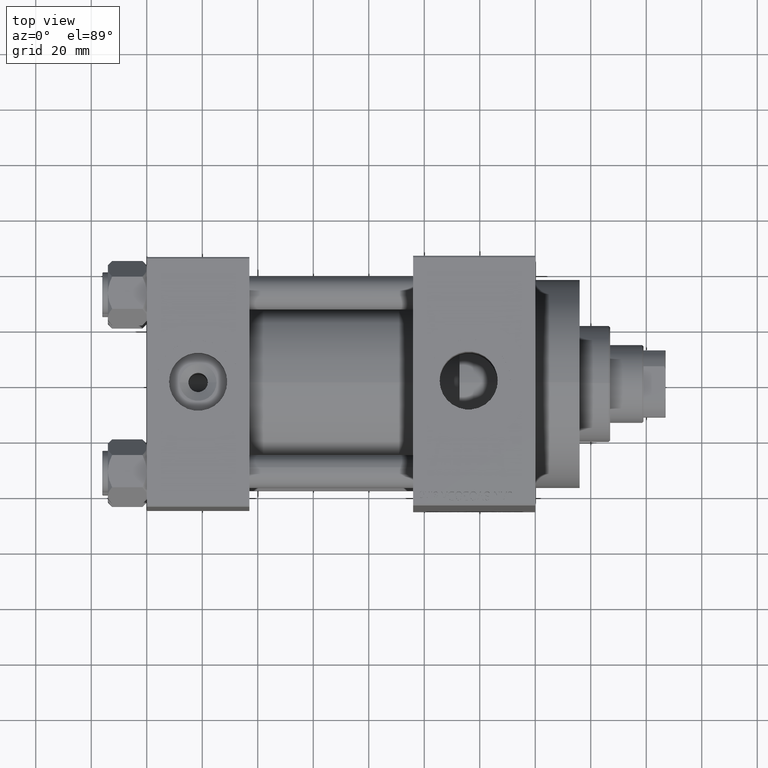
[diagram: clean part render]
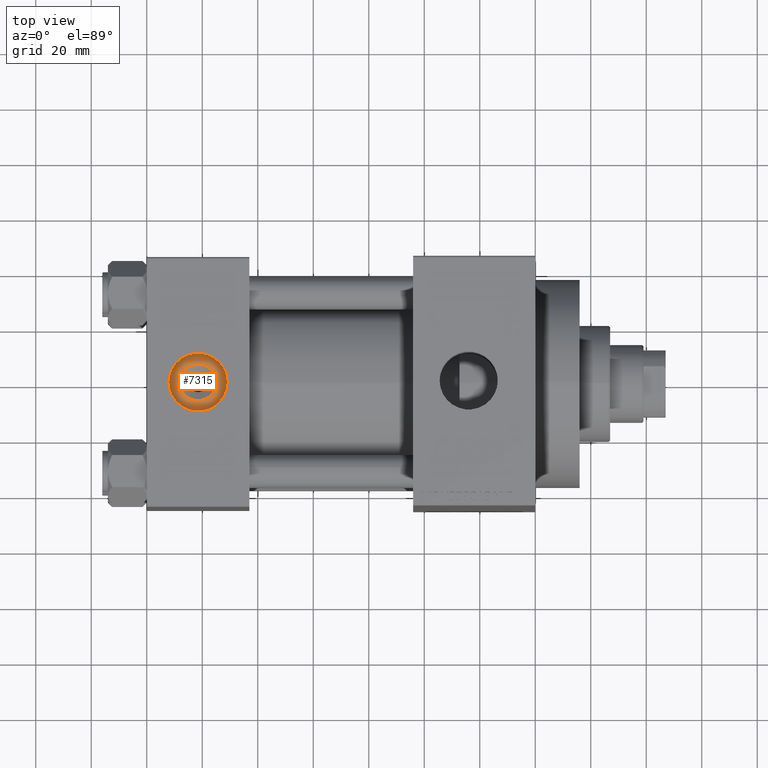
[diagram: same view with one face highlighted and labeled with its STEP entity id]
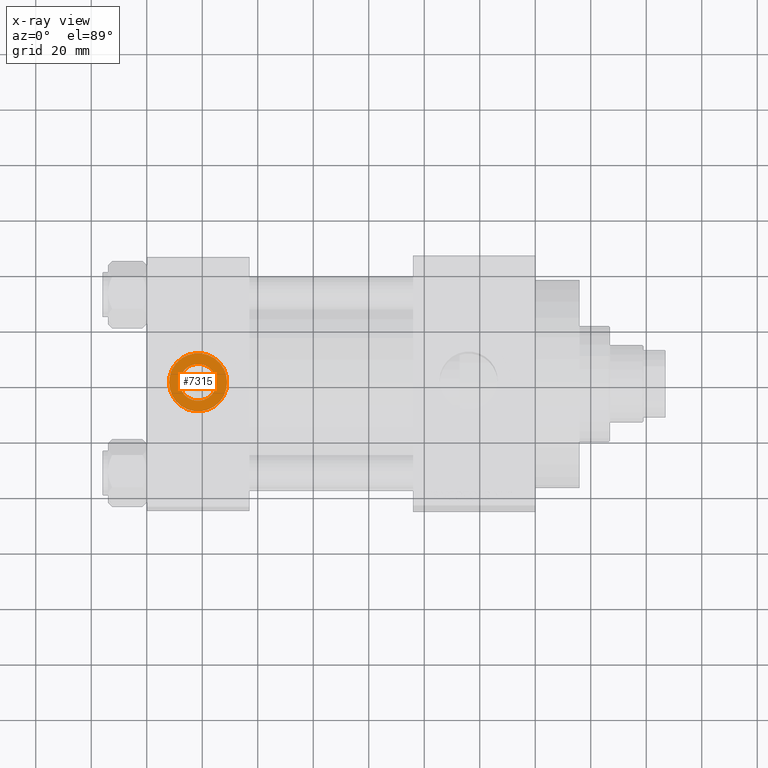
[diagram: x-ray of the same camera — body ghosted, the highlighted face saturated]
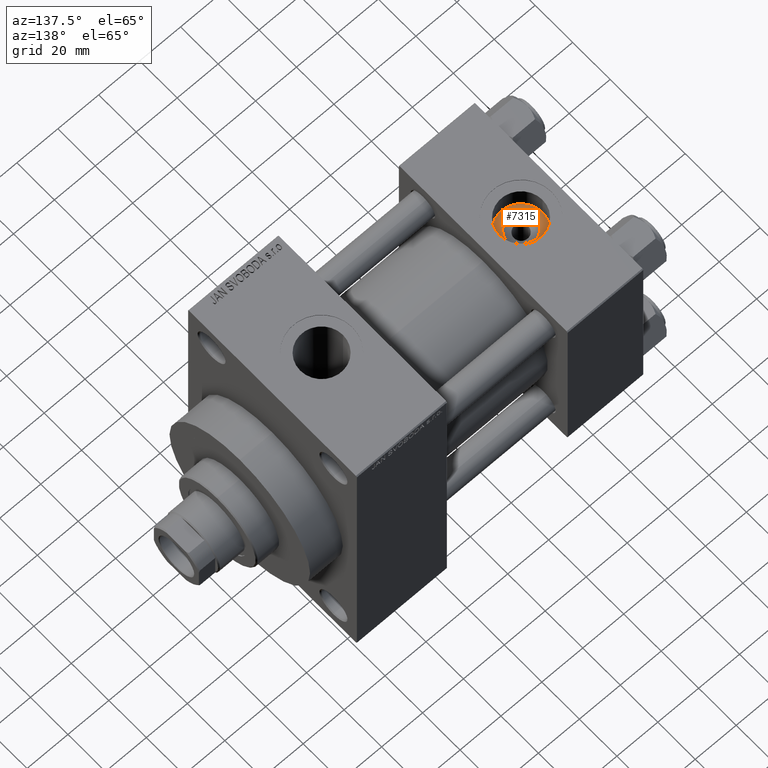
[diagram: same view with one face highlighted and labeled with its STEP entity id]
A machine part, top view. The second image highlights one B-rep face of the part: STEP entity #7315.
The next image is the same camera in x-ray: the body ghosted, the highlighted face saturated — about 0% of this face is hidden behind the body in this view.
A second angle (auxiliary view) of the same face is appended — the face is thin or edge-on in the first view.
In plain terms, the highlighted planar face has unit normal (0, 0, 1).
Its self-contained STEP definition (entity closure, byte-faithful):
#455 = CARTESIAN_POINT ( 'NONE',  ( 18.50000000000000000, -8.673617379884038628E-15, 34.20000000000000995 ) ) ;
#786 = VERTEX_POINT ( 'NONE', #40331 ) ;
#3148 = ORIENTED_EDGE ( 'NONE', *, *, #19815, .T. ) ;
#3490 = EDGE_LOOP ( 'NONE', ( #46818, #32607 ) ) ;
#3923 = AXIS2_PLACEMENT_3D ( 'NONE', #455, #15231, #21070 ) ;
#7315 = ADVANCED_FACE ( 'NONE', ( #12664, #22695 ), #15290, .T. ) ;
#7320 = DIRECTION ( 'NONE',  ( 1.000000000000000000, 0.000000000000000000, 0.000000000000000000 ) ) ;
#8857 = CARTESIAN_POINT ( 'NONE',  ( 18.50000000000000000, -8.673617379884038628E-15, 34.20000000000000995 ) ) ;
#10770 = DIRECTION ( 'NONE',  ( -0.000000000000000000, -0.000000000000000000, -1.000000000000000000 ) ) ;
#11957 = AXIS2_PLACEMENT_3D ( 'NONE', #20211, #37373, #30935 ) ;
#12441 = DIRECTION ( 'NONE',  ( 1.000000000000000000, 0.000000000000000000, -0.000000000000000000 ) ) ;
#12664 = FACE_BOUND ( 'NONE', #3490, .T. ) ;
#12910 = AXIS2_PLACEMENT_3D ( 'NONE', #18535, #36632, #7320 ) ;
#12979 = CARTESIAN_POINT ( 'NONE',  ( 28.98000000000000043, -8.673617379884038628E-15, 34.20000000000000995 ) ) ;
#14304 = EDGE_LOOP ( 'NONE', ( #24260, #3148 ) ) ;
#14815 = DIRECTION ( 'NONE',  ( 1.000000000000000000, 0.000000000000000000, 0.000000000000000000 ) ) ;
#15231 = DIRECTION ( 'NONE',  ( -0.000000000000000000, -0.000000000000000000, -1.000000000000000000 ) ) ;
#15290 = PLANE ( 'NONE',  #34452 ) ;
#18405 = CIRCLE ( 'NONE', #3923, 6.639999999999979252 ) ;
#18477 = VERTEX_POINT ( 'NONE', #25894 ) ;
#18535 = CARTESIAN_POINT ( 'NONE',  ( 18.50000000000000000, -8.673617379884038628E-15, 34.20000000000000995 ) ) ;
#18626 = CARTESIAN_POINT ( 'NONE',  ( 25.13999999999997925, -8.673617379884038628E-15, 34.20000000000000995 ) ) ;
#18885 = DIRECTION ( 'NONE',  ( 0.000000000000000000, 0.000000000000000000, 1.000000000000000000 ) ) ;
#19815 = EDGE_CURVE ( 'NONE', #786, #23063, #27983, .T. ) ;
#20211 = CARTESIAN_POINT ( 'NONE',  ( 18.50000000000000000, -8.673617379884038628E-15, 34.20000000000000995 ) ) ;
#21070 = DIRECTION ( 'NONE',  ( 1.000000000000000000, 0.000000000000000000, 0.000000000000000000 ) ) ;
#22695 = FACE_OUTER_BOUND ( 'NONE', #14304, .T. ) ;
#23063 = VERTEX_POINT ( 'NONE', #12979 ) ;
#24260 = ORIENTED_EDGE ( 'NONE', *, *, #28741, .T. ) ;
#24400 = CIRCLE ( 'NONE', #36550, 6.639999999999979252 ) ;
#25561 = CARTESIAN_POINT ( 'NONE',  ( 18.50000000000000000, -8.673617379884038628E-15, 34.20000000000000995 ) ) ;
#25894 = CARTESIAN_POINT ( 'NONE',  ( 11.86000000000001897, -7.860451905250197307E-15, 34.20000000000000995 ) ) ;
#27983 = CIRCLE ( 'NONE', #11957, 10.48000000000000043 ) ;
#28741 = EDGE_CURVE ( 'NONE', #23063, #786, #41120, .T. ) ;
#30935 = DIRECTION ( 'NONE',  ( 1.000000000000000000, 0.000000000000000000, 0.000000000000000000 ) ) ;
#32607 = ORIENTED_EDGE ( 'NONE', *, *, #33130, .T. ) ;
#33130 = EDGE_CURVE ( 'NONE', #18477, #36295, #18405, .T. ) ;
#34452 = AXIS2_PLACEMENT_3D ( 'NONE', #8857, #18885, #12441 ) ;
#36295 = VERTEX_POINT ( 'NONE', #18626 ) ;
#36550 = AXIS2_PLACEMENT_3D ( 'NONE', #25561, #10770, #14815 ) ;
#36632 = DIRECTION ( 'NONE',  ( 0.000000000000000000, 0.000000000000000000, 1.000000000000000000 ) ) ;
#37373 = DIRECTION ( 'NONE',  ( 0.000000000000000000, 0.000000000000000000, 1.000000000000000000 ) ) ;
#40331 = CARTESIAN_POINT ( 'NONE',  ( 8.019999999999999574, -7.390187534377611561E-15, 34.20000000000000995 ) ) ;
#41120 = CIRCLE ( 'NONE', #12910, 10.48000000000000043 ) ;
#42387 = EDGE_CURVE ( 'NONE', #36295, #18477, #24400, .T. ) ;
#46818 = ORIENTED_EDGE ( 'NONE', *, *, #42387, .T. ) ;